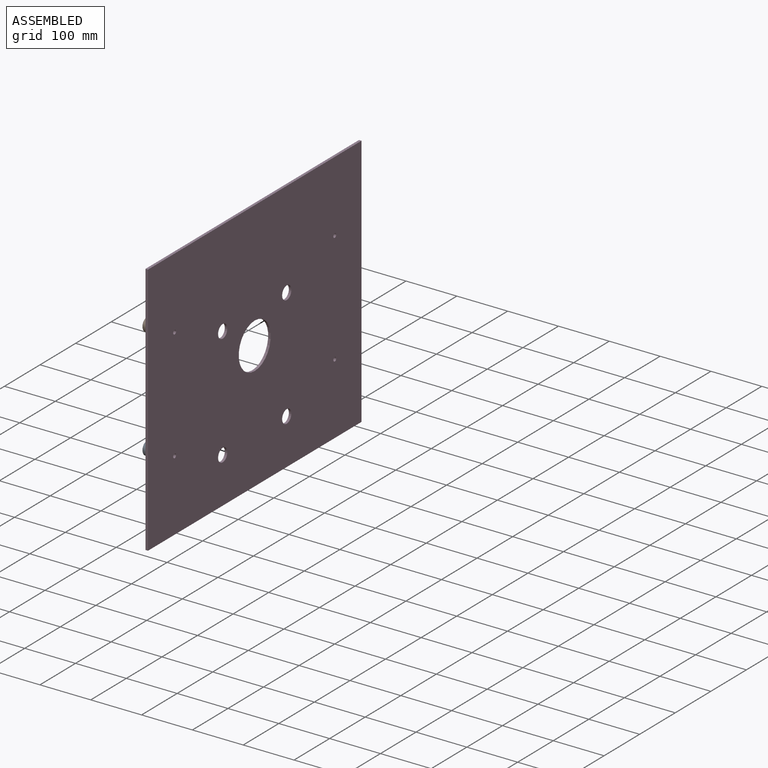
[diagram: assembled view]
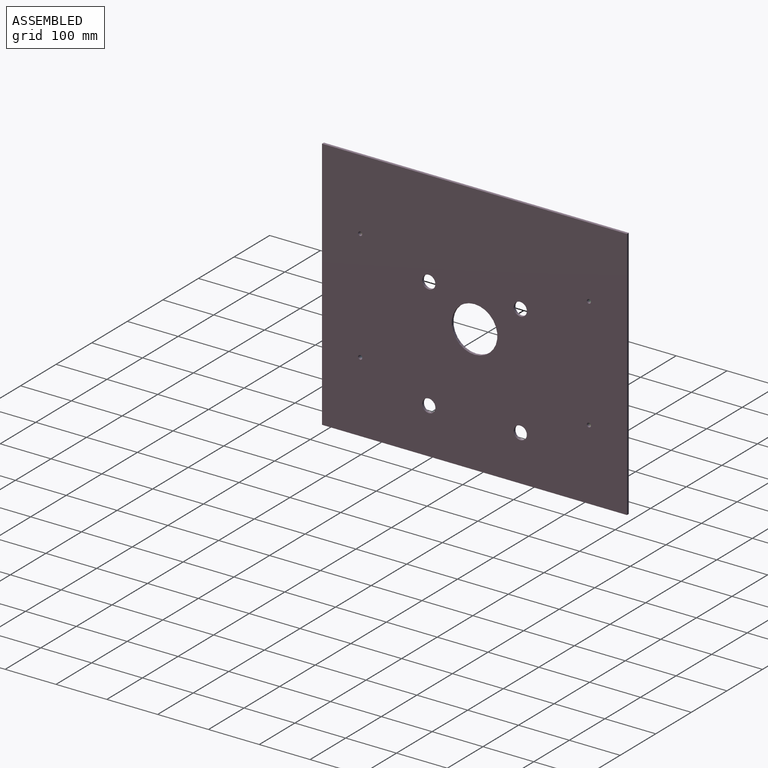
[diagram: assembled view, second angle]
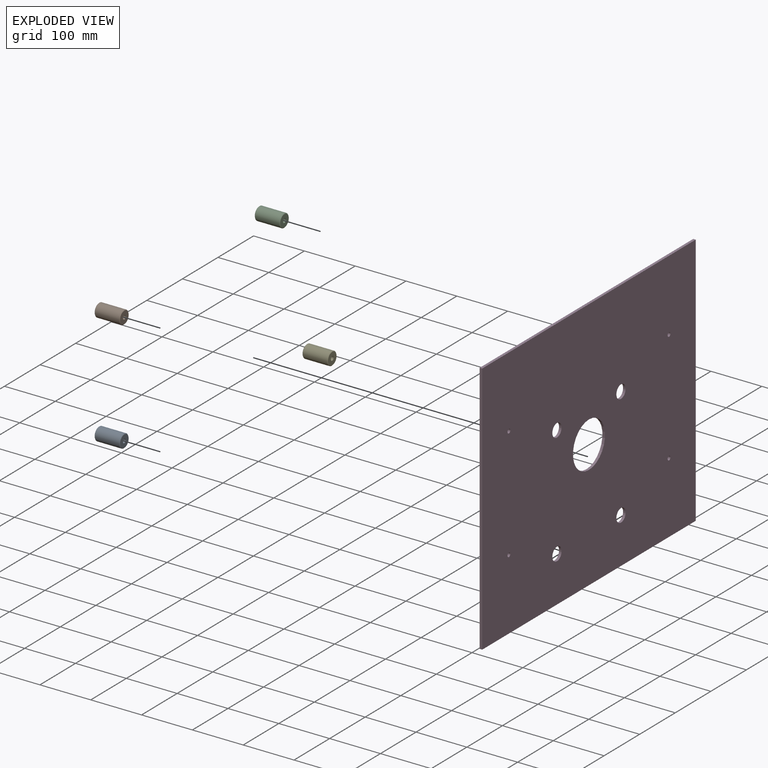
[diagram: exploded view]
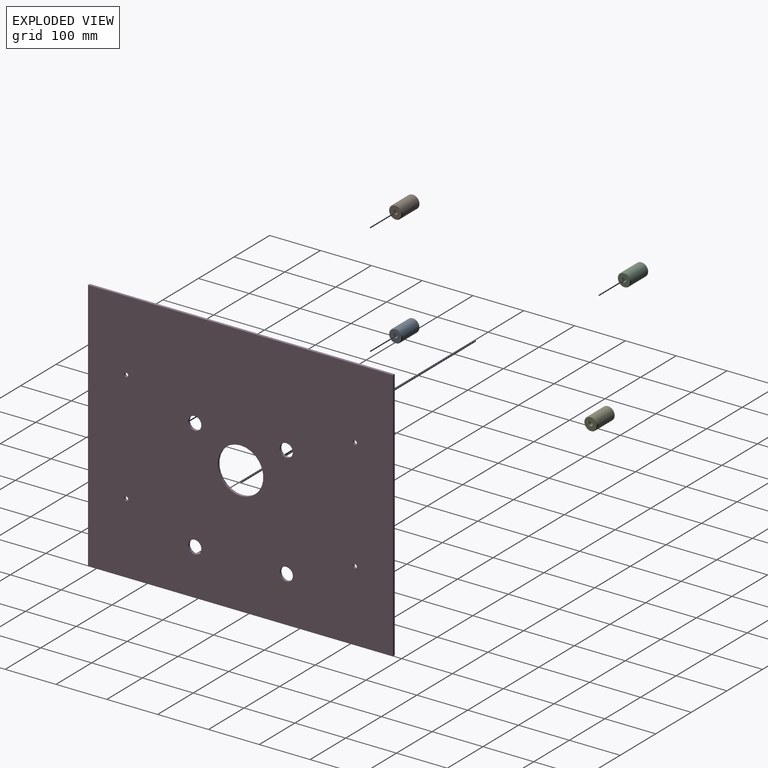
[diagram: exploded view, second angle]
ASSEMBLY  parts=5 mates=4
PART A: 7 faces, bbox 50x26x26 mm
  f0: cylinder r=13mm len=48mm, axis (-1,0,0), area 3920.7mm2, adj f5,f6
  f1: plane 24x24mm, normal (1,0,0), area 402.1mm2, adj f4,f5
  f2: plane 24x24mm, normal (-1,0,0), area 452.4mm2, adj f6
  f3: cone r=0mm half-angle=59deg, axis (1,0,0), area 58.6mm2, adj f4
  f4: cylinder r=4mm len=35mm, axis (1,0,0), area 879.6mm2, adj f1,f3
  f5: cone r=12mm half-angle=45deg, axis (-1,0,0), area 111.1mm2, adj f0,f1
  f6: cone r=13mm half-angle=45deg, axis (1,0,0), area 111.1mm2, adj f0,f2
PART B: same geometry as A
PART C: same geometry as A
PART D: 15 faces, bbox 5x600x500 mm
  f0: plane 500x5mm, normal (0,-1,0), area 2500mm2, adj f1,f3,f4,f5
  f1: plane 600x5mm, normal (0,0,-1), area 3000mm2, adj f0,f2,f4,f5
  f2: plane 500x5mm, normal (0,1,0), area 2500mm2, adj f1,f3,f4,f5
  f3: plane 600x5mm, normal (0,0,1), area 3000mm2, adj f0,f2,f4,f5
  f4: plane 600x500mm, normal (1,0,0), area 291313.5mm2, adj f0,f1,f2,f3,f6,f7,f8,f9
  f5: plane 600x500mm, normal (-1,0,0), area 291313.5mm2, adj f0,f1,f2,f3,f6,f7,f8,f9
  f6: cylinder r=45mm len=90mm, axis (1,0,0), area 1413.7mm2, adj f4,f5
  f7: cylinder r=13mm len=26mm, axis (1,0,0), area 408.4mm2, adj f4,f5
  f8: cylinder r=13mm len=26mm, axis (1,0,0), area 408.4mm2, adj f4,f5
  f9: cylinder r=13mm len=26mm, axis (1,0,0), area 408.4mm2, adj f4,f5
  f10: cylinder r=13mm len=26mm, axis (1,0,0), area 408.4mm2, adj f4,f5
  f11: cylinder r=4mm len=8mm, axis (1,0,0), area 125.7mm2, adj f4,f5
  f12: cylinder r=4mm len=8mm, axis (1,0,0), area 125.7mm2, adj f4,f5
  f13: cylinder r=4mm len=8mm, axis (1,0,0), area 125.7mm2, adj f4,f5
  f14: cylinder r=4mm len=8mm, axis (1,0,0), area 125.7mm2, adj f4,f5
PART E: same geometry as A
PLACE A t=(-196.1,-994.92,302.56)mm
PLACE B t=(-196.1,-994.92,522.56)mm
PLACE C t=(-196.1,-544.92,522.56)mm
PLACE D t=(-141.1,-201.91,206.26)mm
PLACE E t=(-196.1,-544.92,302.56)mm
MATE fastened A.f0 <-> D.f12  axis (1,0,0) through (-141.1,-126.91,346.26)mm
MATE fastened E.f0 <-> D.f11  axis (1,0,0) through (-141.1,323.09,346.26)mm
MATE fastened B.f0 <-> D.f14  axis (1,0,0) through (-141.1,-126.91,566.26)mm
MATE fastened C.f0 <-> D.f13  axis (1,0,0) through (-141.1,323.09,566.26)mm
